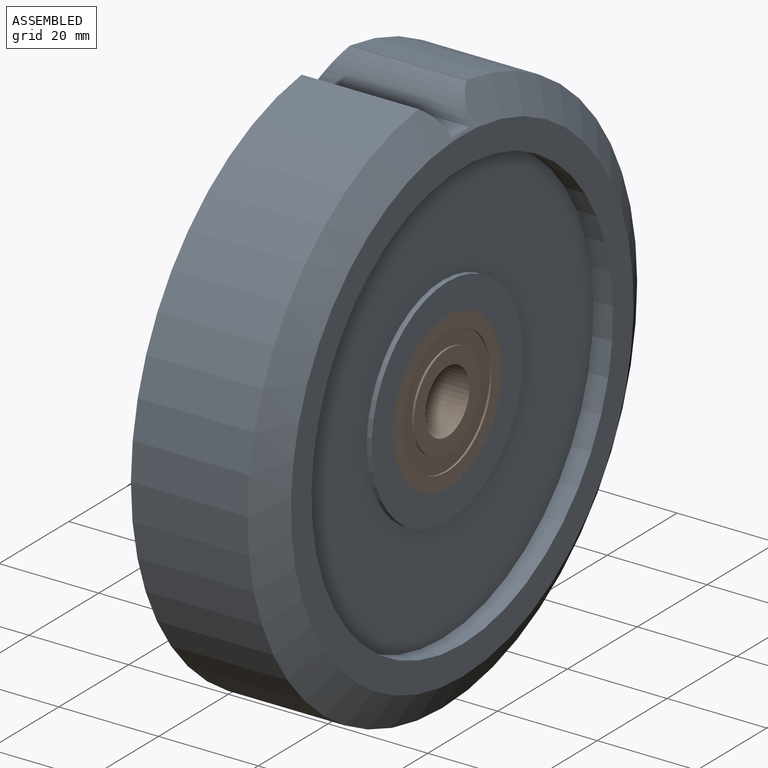
[diagram: assembled view]
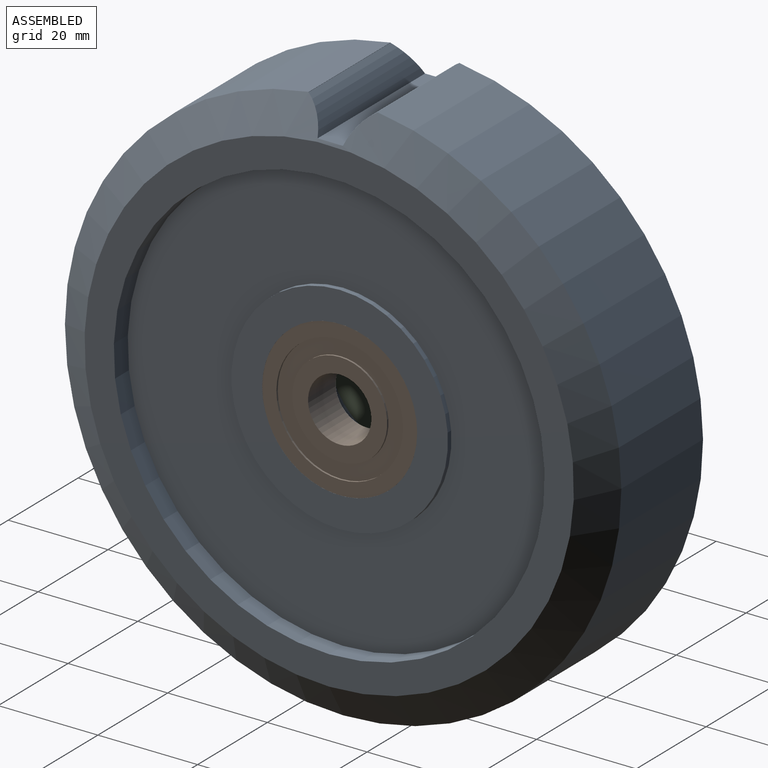
[diagram: assembled view, second angle]
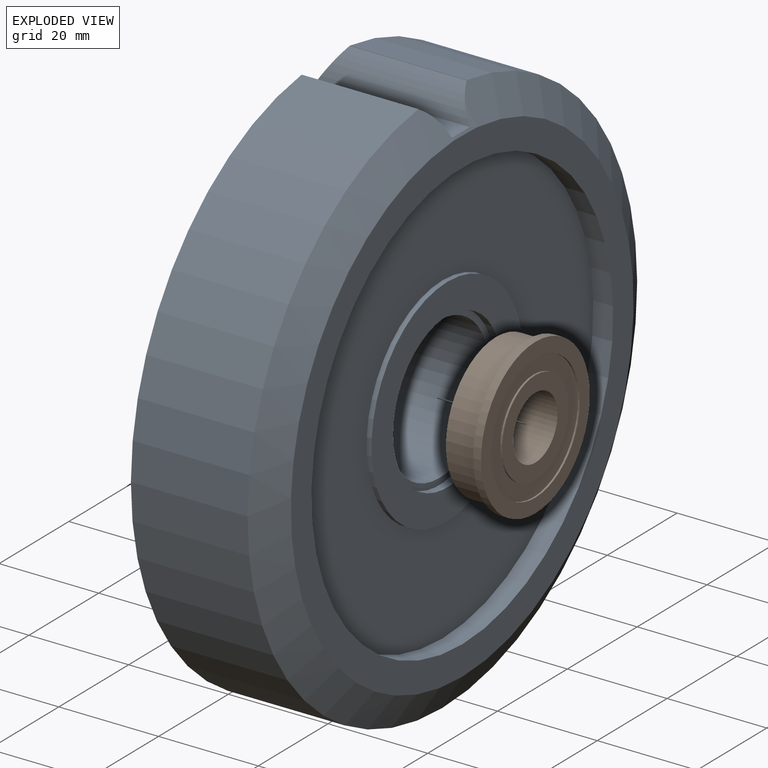
[diagram: exploded view]
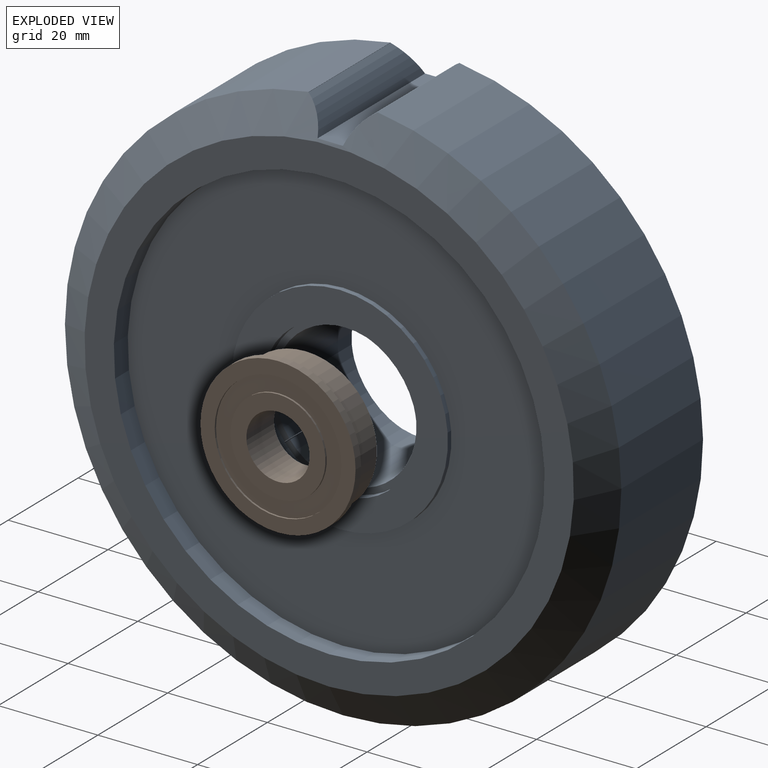
[diagram: exploded view, second angle]
ASSEMBLY  parts=3 mates=2
PART A: 23 faces, bbox 31.4x111.6x111.6 mm
  f0: cone r=49.1mm half-angle=59.3deg, axis (-1,0,0), area 2513.1mm2, adj f1,f7,f18,f19,f20,f21,f22
  f1: cylinder r=55.81mm len=111.62mm, axis (1,0,0), area 7882.5mm2, adj f0,f8,f21,f22
  f2: cylinder r=14.29mm len=28.58mm, axis (1,0,0), area 1994mm2, adj f14,f16
  f3: plane 43.44x43.44mm, normal (1,0,0), area 721.6mm2, adj f4,f17
  f4: cylinder r=21.72mm len=43.44mm, axis (1,0,0), area 136.5mm2, adj f3,f5
  f5: plane 86.44x86.44mm, normal (1,0,0), area 4387mm2, adj f4,f6
  f6: cylinder r=43.22mm len=86.44mm, axis (1,0,0), area 1083.2mm2, adj f5,f7
  f7: plane 98.19x98.19mm, normal (1,0,0), area 1703.9mm2, adj f0,f6
  f8: cone r=49.1mm half-angle=59.3deg, axis (1,0,0), area 2513.1mm2, adj f1,f9,f18,f19,f20,f21,f22
  f9: plane 98.19x98.19mm, normal (-1,0,0), area 1703.9mm2, adj f8,f10
  f10: cylinder r=43.22mm len=86.44mm, axis (1,0,0), area 1083.2mm2, adj f9,f11
  f11: plane 86.44x86.44mm, normal (-1,0,0), area 4387mm2, adj f10,f12
  f12: cylinder r=21.72mm len=43.44mm, axis (1,0,0), area 136.5mm2, adj f11,f13
  f13: plane 43.44x43.44mm, normal (-1,0,0), area 721.6mm2, adj f12,f15
  f14: plane 31.12x31.12mm, normal (-1,0,0), area 119.1mm2, adj f2,f15
  f15: cylinder r=15.56mm len=31.12mm, axis (-1,0,0), area 155.2mm2, adj f13,f14
  f16: plane 31.12x31.12mm, normal (1,0,0), area 119.1mm2, adj f2,f17
  f17: cylinder r=15.56mm len=31.12mm, axis (1,0,0), area 156.4mm2, adj f3,f16
  f18: plane 30.88x5.09mm, normal (0,0,1), area 156.7mm2, adj f0,f8,f19,f20
  f19: cylinder r=9.34mm len=30.79mm, axis (1,0,0), area 200.2mm2, adj f0,f8,f18,f21
  f20: cylinder r=9.34mm len=30.79mm, axis (1,0,0), area 200.2mm2, adj f0,f8,f18,f22
  f21: plane 23.45x0.05mm, normal (0,-1,0), area 1.1mm2, adj f0,f1,f8,f19
  f22: plane 23.45x0.05mm, normal (0,0.99,-0.17), area 1.1mm2, adj f0,f1,f8,f20
PART B: 10 faces, bbox 31.1x7.9x31.1 mm
  f0: cylinder r=12.7mm len=25.4mm, axis (0,1,0), area 30.4mm2, adj f8,f9
  f1: cylinder r=15.56mm len=31.12mm, axis (0,1,0), area 155.2mm2, adj f7,f8
  f2: cylinder r=14.29mm len=28.58mm, axis (0,1,0), area 570mm2, adj f6,f7
  f3: cylinder r=6.35mm len=12.7mm, axis (0,1,0), area 316.7mm2, adj f5,f6
  f4: cylinder r=9.53mm len=19.05mm, axis (0,1,0), area 22.8mm2, adj f5,f9
  f5: plane 19.05x19.05mm, normal (0,1,0), area 158.3mm2, adj f3,f4
  f6: plane 28.58x28.58mm, normal (0,-1,0), area 514.6mm2, adj f2,f3
  f7: plane 31.12x31.12mm, normal (0,-1,0), area 119.1mm2, adj f1,f2
  f8: plane 31.12x31.12mm, normal (0,1,0), area 253.7mm2, adj f0,f1
  f9: plane 25.4x25.4mm, normal (0,1,0), area 221.7mm2, adj f0,f4
PART C: same geometry as B
PLACE A t=(24.92,11.58,-3.49)mm
PLACE B rot(axis=(0,0,-1),90deg) t=(27.88,11.58,-3.49)mm
PLACE C rot(axis=(0,0,1),90deg) t=(18.36,11.58,-3.49)mm
MATE fastened C.f0 <-> A.f0  axis (1,0,0) through (12.01,11.58,-3.49)mm
MATE fastened B.f0 <-> A.f0  axis (-1,0,0) through (34.23,11.58,-3.49)mm
